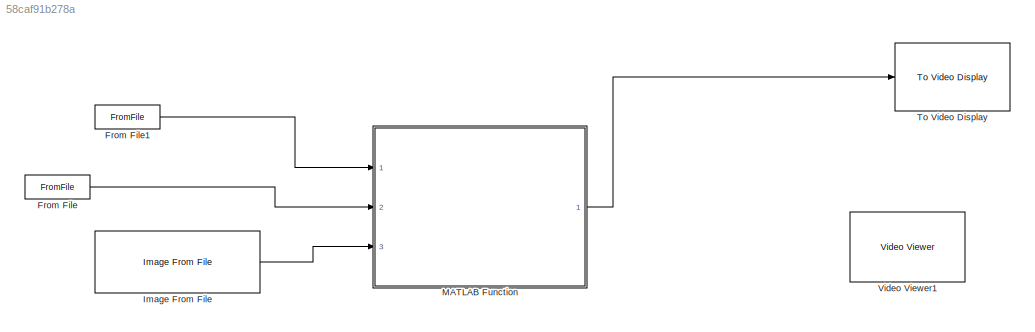
MODEL slx_58caf91b278a
KIND model
CONFIG AbsTol = auto
CONFIG FixedStep = auto
CONFIG MaxStep = auto
CONFIG MinStep = auto
CONFIG RelTol = 1e-3
CONFIG SampleTimeConstraint = Unconstrained
CONFIG Solver = ode45
CONFIG SolverMode = Auto
CONFIG SolverName = ode45
CONFIG StartTime = 0.0
CONFIG StopTime = 10.0
BLOCK [FromFile] From File
  FileName = ex3data1.mat
  SampleTime = 0
BLOCK [FromFile] From File1
  FileName = ex3weights.mat
  SampleTime = 0
BLOCK [Reference] Image From File  REF=visionsources/Image From File
  FileName = <userpath>\Desktop\one1.jpg
  FractionLength = 15
  FractionLengthMode = User-defined
  ImageDataType = Inherit from input image
  OutPortLabels = R|G|B
  Ports = [0, 1]
  Signed = on
  SourceBlock = visionsources/Image From File
  SourceType = Image From File
  Tag = vipblks_nd
  Ts = inf
  WordLength = 16
  imagePorts = One multidimensional signal
  sdImageDataType = uint(8)
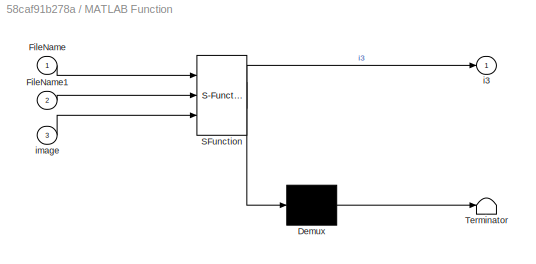
BLOCK [SubSystem] MATLAB Function
  ErrorFcn = Stateflow.Translate.translate
  PermitHierarchicalResolution = ExplicitOnly
  Ports = [3, 1]
  RequestExecContextInheritance = off
  SFBlockType = MATLAB Function
  TreatAsAtomicUnit = on
BLOCK [Demux] MATLAB Function/ Demux 
  Outputs = 1
  Ports = [1, 1]
BLOCK [S-Function] MATLAB Function/ SFunction 
  EnableBusSupport = on
  FunctionName = sf_sfun
  PortCounts = [3 2]
  Ports = [3, 2]
  Tag = Stateflow S-Function a 2
BLOCK [Terminator] MATLAB Function/ Terminator 
BLOCK [Inport] MATLAB Function/FileName
  IconDisplay = Port number
BLOCK [Inport] MATLAB Function/FileName1
  IconDisplay = Port number
  Port = 2
BLOCK [Outport] MATLAB Function/i3
  IconDisplay = Port number
BLOCK [Inport] MATLAB Function/image
  IconDisplay = Port number
  Port = 3
BLOCK [Reference] To Video Display  REF=visionsinks/To Video Display
  OutputDevice = On-screen video monitor
  Ports = [1]
  SourceBlock = visionsinks/To Video Display
  SourceType = To Video Display
  dataOrg = Column-major
  fullScreen = off
  imagePorts = One multidimensional signal
  inputColorFormat = RGB
  inputType = Obsolete
  isWindowOpen = off
  openAtMdlStart = on
  saveWindowSize = off
  videoWindowHeight = 2147483647
  videoWindowWidth = 2147483647
  videoWindowX = 536805376
  videoWindowY = 536805376
  windowSizeMode = Normal
BLOCK [Reference] Video Viewer1  REF=visionsinks/Video Viewer
  AxisZoom = on
  DefaultConfigurationName = vipscopes.VideoViewerScopeCfg
  FigPos = [563 581 410 300]
  OpenAtMdlStart = on
  Ports = [1]
  SourceBlock = visionsinks/Video Viewer
  SourceType = Video Viewer
  UserDataPersistent = on
  colormapValue = jet(256)
  imagePorts = One multidimensional signal
  inputType = Obsolete7b
  maxInputVal = 255
  minInputVal = 0
  specRange = off
  trueSizedOnce = off
  useColorMap = off
LINE From File1:1 -> MATLAB Function:1
LINE From File:1 -> MATLAB Function:2
LINE Image From File:1 -> MATLAB Function:3
LINE MATLAB Function:1 -> To Video Display:1
CHART MATLAB Function states=1 transitions=1
  STATE_LABEL 'eML_blk_kernel()'
  STATE_LABEL 'SCRIPT:\nfunction i3  = fcn(FileName, FileName1, image)\n% %% Machine Learning Online Class - Exercise 3 | Part 2: Neural Networks\n\n%  Instructions\n%  ------------\n% \n%  This file contains code that helps you get started on the\n%  linear exercise. You will need to complete the following functions \n%  in this exericse:\n%\n%     lrCostFunction.m (logistic regression cost function)\n%     oneVsAll.m\n%   ...<+2168ch>'
